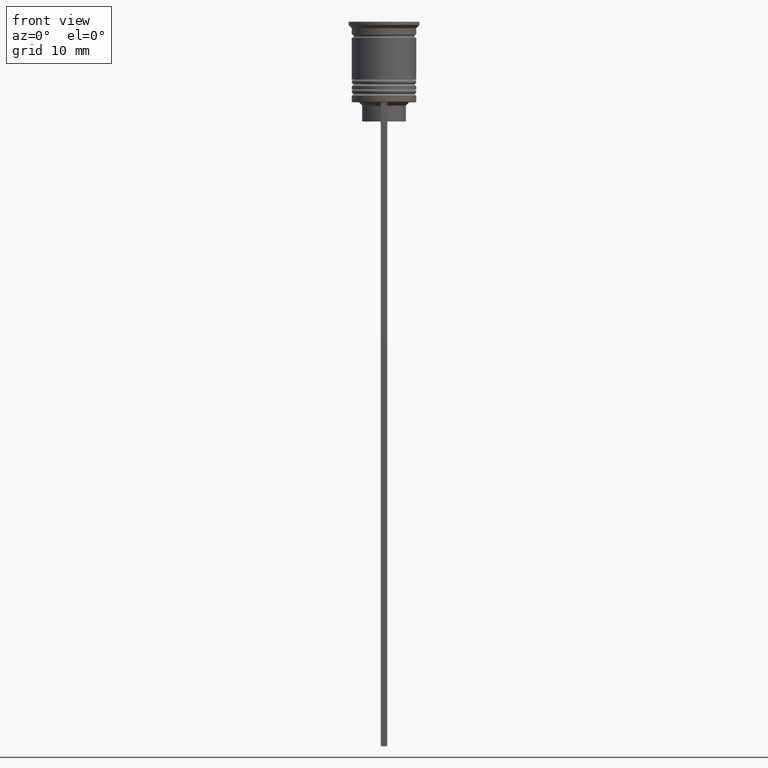
[diagram: clean part render]
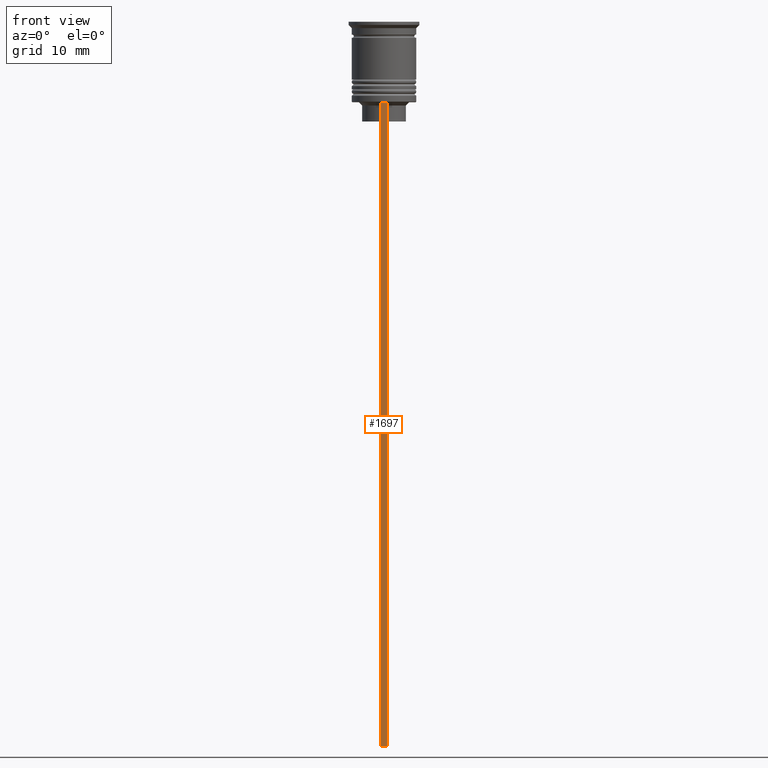
[diagram: same view with one face highlighted and labeled with its STEP entity id]
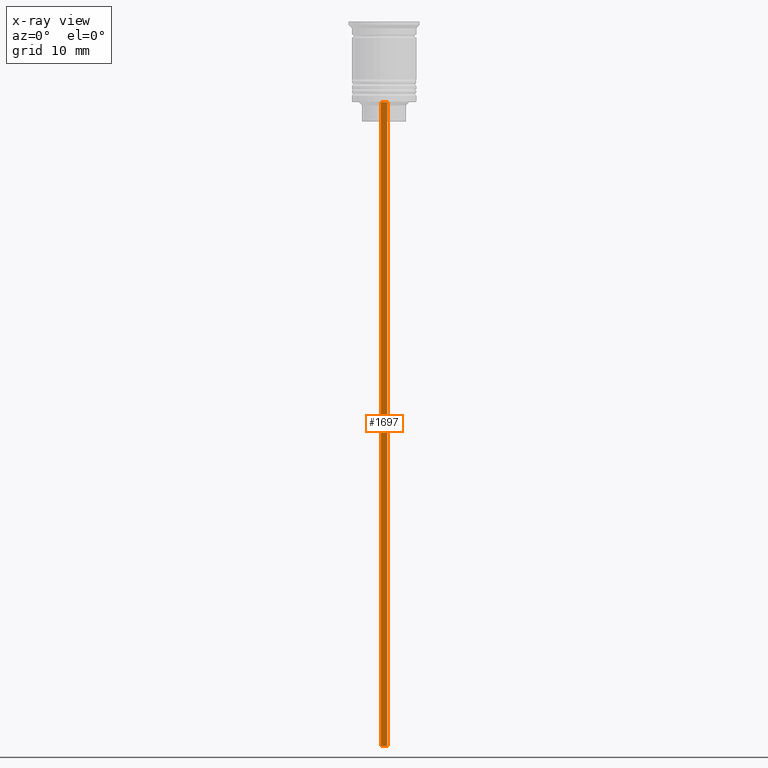
[diagram: x-ray of the same camera — body ghosted, the highlighted face saturated]
A machine part, front view. The second image highlights one B-rep face of the part: STEP entity #1697.
The next image is the same camera in x-ray: the body ghosted, the highlighted face saturated — about 0% of this face is hidden behind the body in this view.
In plain terms, the highlighted planar face has unit normal (0, -1, -0).
Its self-contained STEP definition (entity closure, byte-faithful):
#4 = CARTESIAN_POINT ( 'NONE',  ( -0.5000000000000000000, -4.999999999999999112, -2.450124378879110054 ) ) ;
#233 = DIRECTION ( 'NONE',  ( 0.000000000000000000, 0.000000000000000000, -1.000000000000000000 ) ) ;
#288 = ORIENTED_EDGE ( 'NONE', *, *, #533, .F. ) ;
#311 = VERTEX_POINT ( 'NONE', #1685 ) ;
#381 = ORIENTED_EDGE ( 'NONE', *, *, #2540, .T. ) ;
#413 = DIRECTION ( 'NONE',  ( -1.000000000000000000, 0.000000000000000000, 0.000000000000000000 ) ) ;
#533 = EDGE_CURVE ( 'NONE', #2120, #2146, #597, .T. ) ;
#597 = LINE ( 'NONE', #2003, #2177 ) ;
#832 = VECTOR ( 'NONE', #1470, 1000.000000000000000 ) ;
#859 = CARTESIAN_POINT ( 'NONE',  ( 0.5000000000000000000, -4.999999999999999112, -2.450124378879110054 ) ) ;
#918 = PLANE ( 'NONE',  #2434 ) ;
#924 = ORIENTED_EDGE ( 'NONE', *, *, #1904, .F. ) ;
#940 = DIRECTION ( 'NONE',  ( 0.000000000000000000, -1.000000000000000000, -0.000000000000000000 ) ) ;
#1102 = CARTESIAN_POINT ( 'NONE',  ( 0.5000000000000000000, -4.999999999999999112, -112.5000000000000000 ) ) ;
#1144 = CARTESIAN_POINT ( 'NONE',  ( 0.5000000000000000000, -4.999999999999999112, -2.450124378879110054 ) ) ;
#1313 = LINE ( 'NONE', #4, #2333 ) ;
#1439 = ORIENTED_EDGE ( 'NONE', *, *, #2571, .F. ) ;
#1443 = VECTOR ( 'NONE', #2391, 1000.000000000000000 ) ;
#1470 = DIRECTION ( 'NONE',  ( 0.000000000000000000, 0.000000000000000000, -1.000000000000000000 ) ) ;
#1519 = DIRECTION ( 'NONE',  ( 0.000000000000000000, 0.000000000000000000, -1.000000000000000000 ) ) ;
#1573 = CARTESIAN_POINT ( 'NONE',  ( 0.5000000000000000000, -4.999999999999999112, -12.50000000000000000 ) ) ;
#1685 = CARTESIAN_POINT ( 'NONE',  ( -0.5000000000000000000, -4.999999999999999112, -12.50000000000000000 ) ) ;
#1697 = ADVANCED_FACE ( 'NONE', ( #2522 ), #918, .T. ) ;
#1808 = LINE ( 'NONE', #1573, #1443 ) ;
#1904 = EDGE_CURVE ( 'NONE', #1916, #2120, #2438, .T. ) ;
#1916 = VERTEX_POINT ( 'NONE', #2037 ) ;
#2003 = CARTESIAN_POINT ( 'NONE',  ( 0.5000000000000000000, -4.999999999999999112, -112.5000000000000000 ) ) ;
#2037 = CARTESIAN_POINT ( 'NONE',  ( 0.5000000000000000000, -4.999999999999999112, -12.50000000000000000 ) ) ;
#2120 = VERTEX_POINT ( 'NONE', #1102 ) ;
#2146 = VERTEX_POINT ( 'NONE', #2555 ) ;
#2177 = VECTOR ( 'NONE', #413, 1000.000000000000000 ) ;
#2333 = VECTOR ( 'NONE', #233, 1000.000000000000000 ) ;
#2391 = DIRECTION ( 'NONE',  ( 1.000000000000000000, 0.000000000000000000, 0.000000000000000000 ) ) ;
#2433 = EDGE_LOOP ( 'NONE', ( #1439, #381, #288, #924 ) ) ;
#2434 = AXIS2_PLACEMENT_3D ( 'NONE', #1144, #940, #1519 ) ;
#2438 = LINE ( 'NONE', #859, #832 ) ;
#2522 = FACE_OUTER_BOUND ( 'NONE', #2433, .T. ) ;
#2540 = EDGE_CURVE ( 'NONE', #311, #2146, #1313, .T. ) ;
#2555 = CARTESIAN_POINT ( 'NONE',  ( -0.5000000000000000000, -4.999999999999999112, -112.5000000000000000 ) ) ;
#2571 = EDGE_CURVE ( 'NONE', #311, #1916, #1808, .T. ) ;